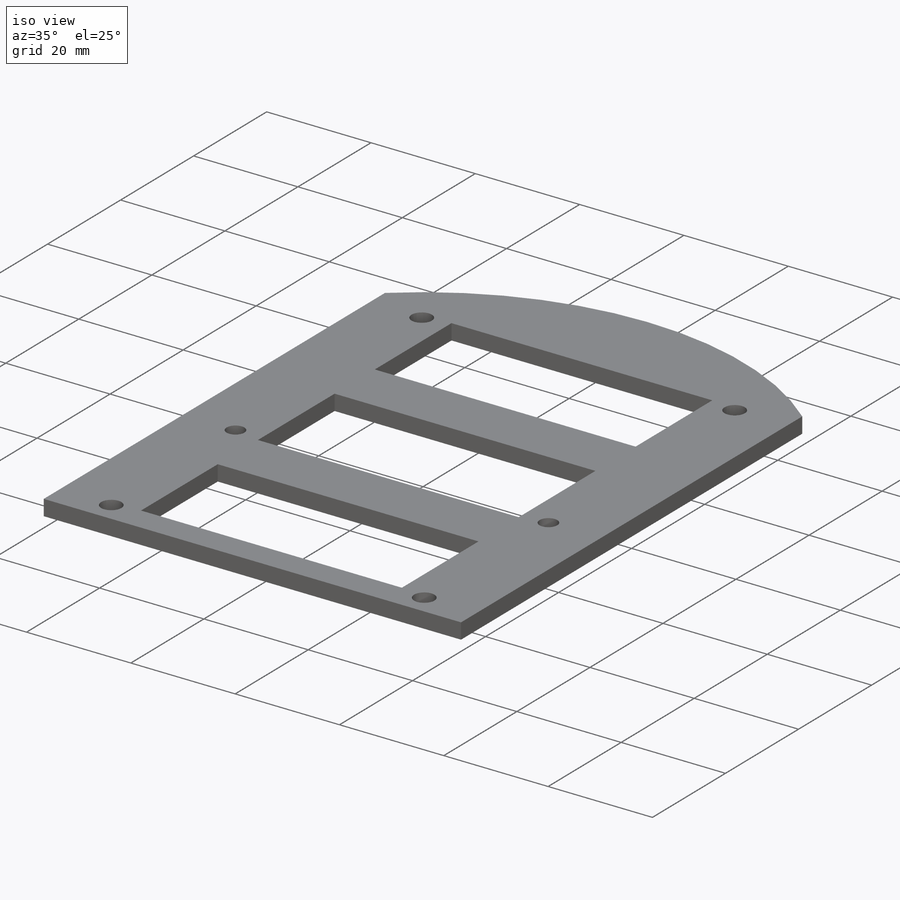
[diagram: iso view]
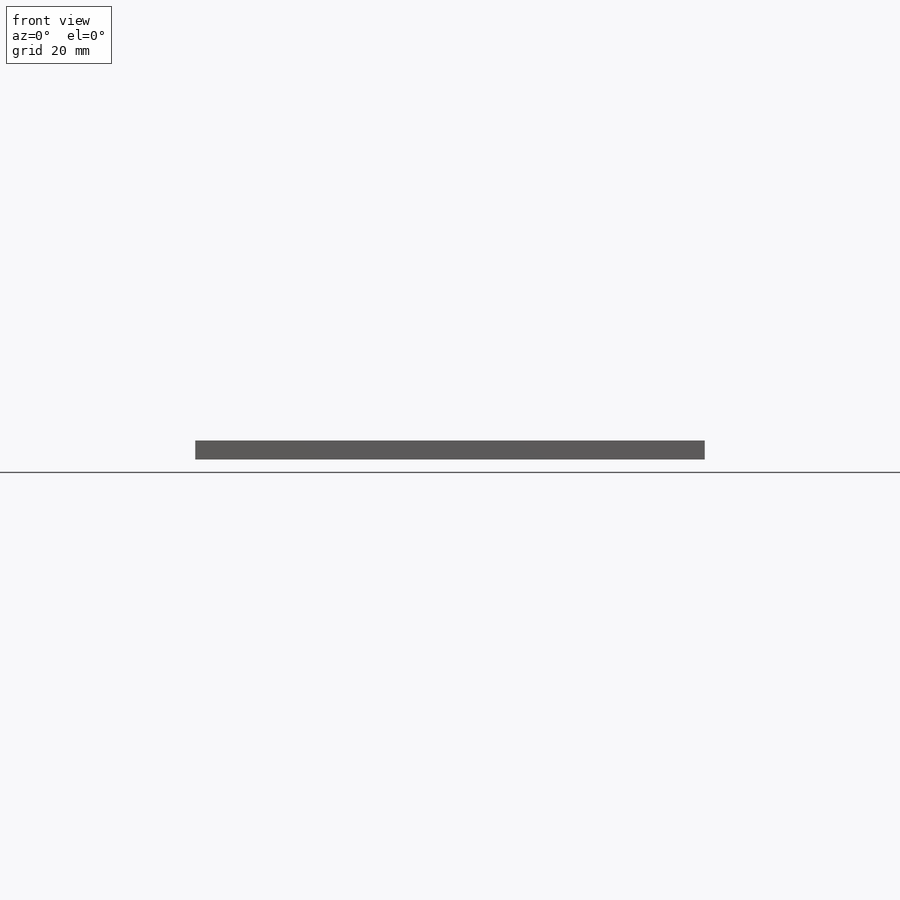
[diagram: front view]
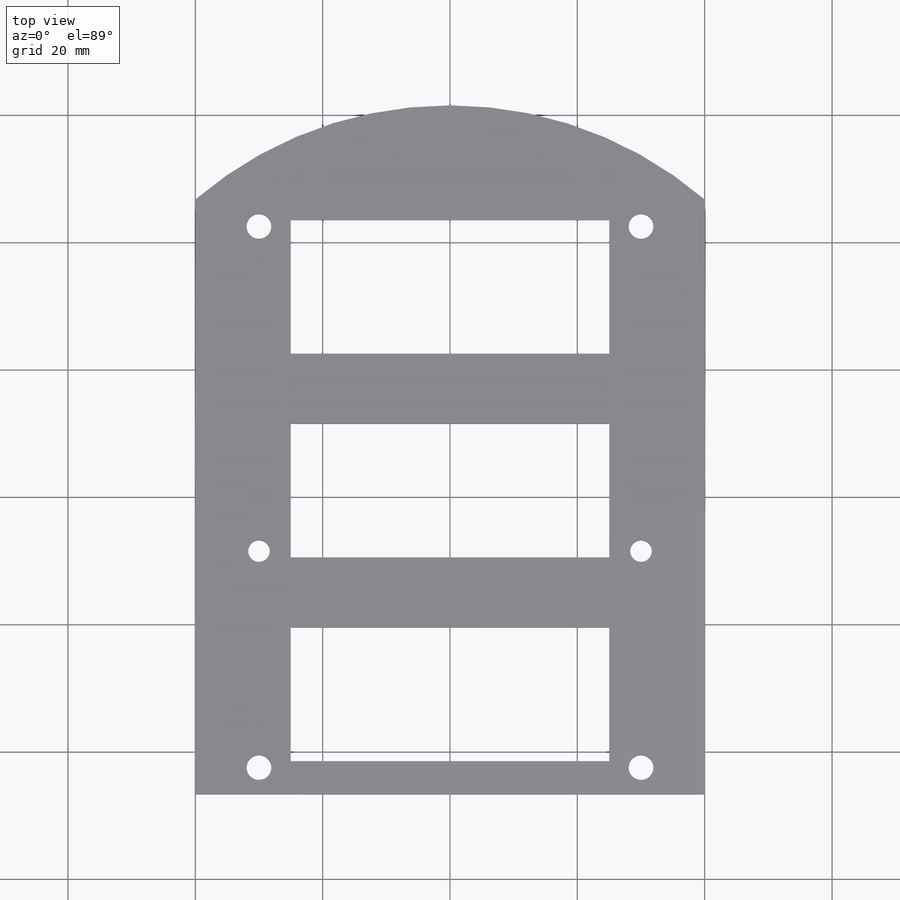
[diagram: top view]
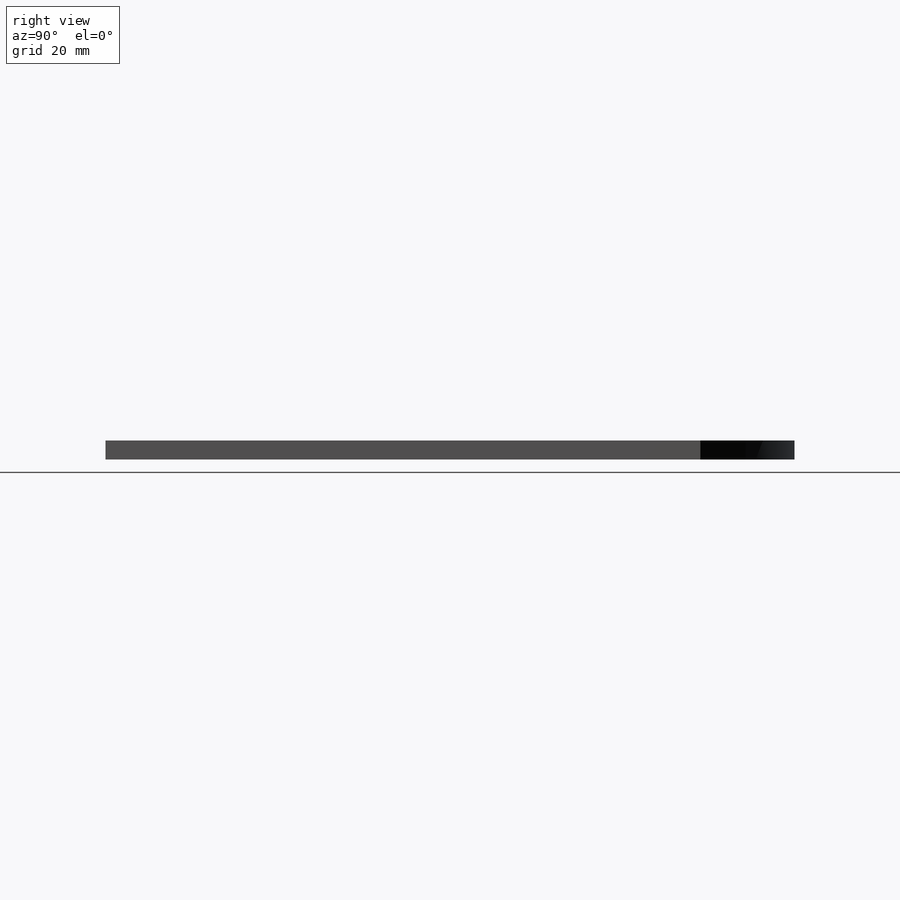
[diagram: right view]
SOLIDWORKS PART (.sldprt)
format: sldprt  version: not decoded by parser v0  size: 278,528 bytes
history: native  units: mm
features: sketch x9, plane x4, cut_extrude x2, hole x2, material x1, extrude x1, mirror x1 (+8 scaffold rows collapsed)
feature tree (28):
  scaffold x8  (default folders/planes/origin — collapsed)
  material  "PF"
  plane  "Plan de face"
  plane  "Plan de dessus"
  plane  "Plan de droite"
  sketch  "Esquisse1"  dims[D1=123.0mm]
  extrude  "Boss.-Extru.1"  Depth=3mm
  sketch  "Esquisse3"  dims[c1.D1=~114.600422mm c2.D1=~1.054405deg c3.D1=40.0mm]
  cut_extrude  "Enlèv. mat.-Extru.1"  [1 undecoded]
  sketch  "Esquisse4"  dims[D1=70.0mm]
  sketch  "Esquisse10"  dims[D1=85.0mm D2=60.0mm]
  hole  "Dégagement M31"  Diameter=3.4mm Depth=3mm
  sketch  "Esquisse8"  dims[D1=30.0mm]
  sketch  "Esquisse7"  dims[hole-wizard template sketch: 61 standard entries collapsed; hole parameters above]
  plane  "Plan1"
  mirror  "Symétrie1"
  hole  "Dégagement M3.51"  Diameter=3.9mm Depth=3mm
  sketch  "Esquisse12"
  sketch  "Esquisse13"  dims[hole-wizard template sketch: 60 standard entries collapsed; hole parameters kept: c18.Profondeur du perçage jusqu'au prochain=3.0mm]
  sketch  "Esquisse15"  dims[D1=21.0mm D2=50.0mm D3=18.0mm D4=11.0mm D5=11.0mm]
  cut_extrude  "Enlèv. mat.-Extru.2"  [1 undecoded]
decode coverage: 11 of 15 modeling features carry decoded parameters
note: ~ marks probable driven/reference dimensions
note: 2 parameter values undecoded
note: suppression state not decoded; provenance and decode notes live in map.json
